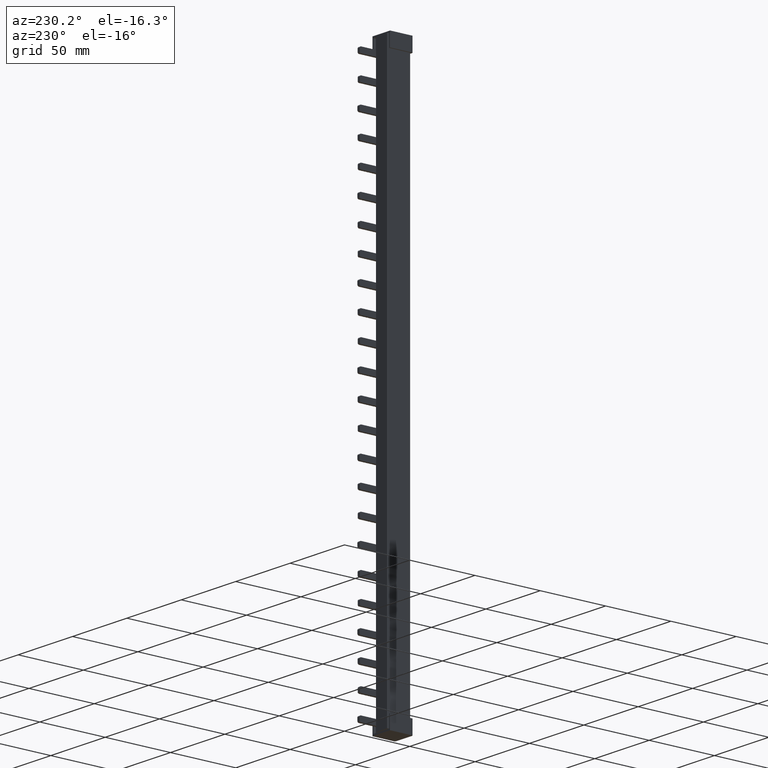
[diagram: clean part render]
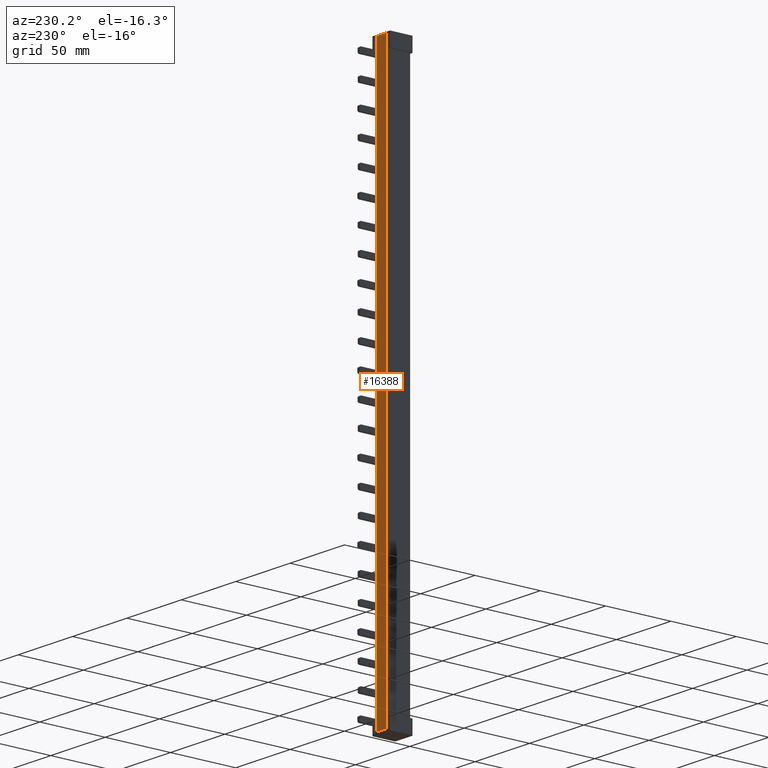
[diagram: same view with one face highlighted and labeled with its STEP entity id]
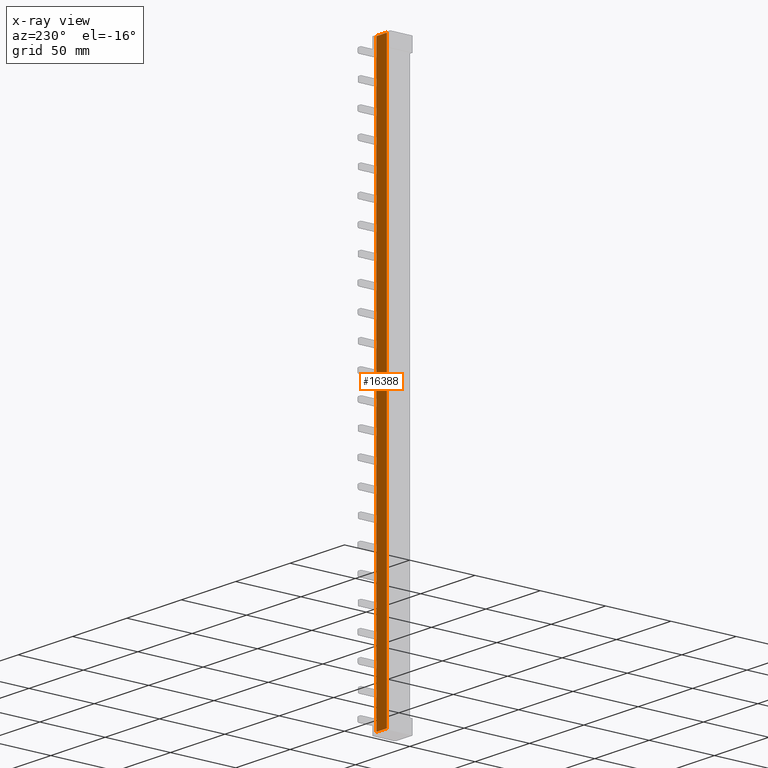
[diagram: x-ray of the same camera — body ghosted, the highlighted face saturated]
A machine part, auxiliary view. The second image highlights one B-rep face of the part: STEP entity #16388.
The next image is the same camera in x-ray: the body ghosted, the highlighted face saturated — about 0% of this face is hidden behind the body in this view.
In plain terms, the highlighted planar face has unit normal (0, 1, 0).
Its self-contained STEP definition (entity closure, byte-faithful):
#7617 = EDGE_CURVE ( 'NONE', #25913, #25951, #13799, .T. ) ;
#7629 = EDGE_CURVE ( 'NONE', #25842, #25833, #13850, .T. ) ;
#7650 = EDGE_CURVE ( 'NONE', #25913, #25842, #13873, .T. ) ;
#7659 = EDGE_CURVE ( 'NONE', #25833, #25951, #13921, .T. ) ;
#13788 = CARTESIAN_POINT ( 'NONE',  ( -0.1240000000000008700, 17.70000000000001400, 219.0000000000000000 ) ) ;
#13799 = LINE ( 'NONE', #13788, #40424 ) ;
#13831 = CARTESIAN_POINT ( 'NONE',  ( 9.543233284733545900, 17.69999999999998500, 219.0000000000000000 ) ) ;
#13834 = DIRECTION ( 'NONE',  ( -0.0000000000000000000, 0.0000000000000000000, -1.000000000000000000 ) ) ;
#13835 = DIRECTION ( 'NONE',  ( -0.0000000000000000000, -0.0000000000000000000, -1.000000000000000000 ) ) ;
#13850 = LINE ( 'NONE', #13831, #40504 ) ;
#13873 = LINE ( 'NONE', #13939, #40487 ) ;
#13921 = LINE ( 'NONE', #13927, #40469 ) ;
#13927 = CARTESIAN_POINT ( 'NONE',  ( 5.825548534933072500, 17.69999999999998500, -208.7999999999999800 ) ) ;
#13930 = DIRECTION ( 'NONE',  ( 1.000000000000000000, 0.0000000000000000000, -0.0000000000000000000 ) ) ;
#13933 = DIRECTION ( 'NONE',  ( -1.000000000000000000, -0.0000000000000000000, 0.0000000000000000000 ) ) ;
#13939 = CARTESIAN_POINT ( 'NONE',  ( 5.825548534933072500, 17.69999999999998500, 217.7999999999999800 ) ) ;
#16388 = ADVANCED_FACE ( 'NONE', ( #19972 ), #19967, .T. ) ;
#19967 = PLANE ( 'NONE',  #35660 ) ;
#19972 = FACE_OUTER_BOUND ( 'NONE', #26341, .T. ) ;
#19986 = DIRECTION ( 'NONE',  ( 0.0000000000000000000, -0.0000000000000000000, 1.000000000000000000 ) ) ;
#19988 = DIRECTION ( 'NONE',  ( 0.0000000000000000000, 1.000000000000000000, 0.0000000000000000000 ) ) ;
#19990 = CARTESIAN_POINT ( 'NONE',  ( 5.825548534933072500, 17.69999999999998500, 219.0000000000000000 ) ) ;
#23857 = ORIENTED_EDGE ( 'NONE', *, *, #7659, .T. ) ;
#23873 = ORIENTED_EDGE ( 'NONE', *, *, #7617, .F. ) ;
#23905 = ORIENTED_EDGE ( 'NONE', *, *, #7650, .T. ) ;
#23917 = ORIENTED_EDGE ( 'NONE', *, *, #7629, .T. ) ;
#25833 = VERTEX_POINT ( 'NONE', #27829 ) ;
#25842 = VERTEX_POINT ( 'NONE', #27878 ) ;
#25913 = VERTEX_POINT ( 'NONE', #28021 ) ;
#25951 = VERTEX_POINT ( 'NONE', #28130 ) ;
#26341 = EDGE_LOOP ( 'NONE', ( #23917, #23857, #23873, #23905 ) ) ;
#27829 = CARTESIAN_POINT ( 'NONE',  ( 9.543233284733545900, 17.69999999999998500, -208.7999999999999800 ) ) ;
#27878 = CARTESIAN_POINT ( 'NONE',  ( 9.543233284733545900, 17.69999999999998500, 217.7999999999999800 ) ) ;
#28021 = CARTESIAN_POINT ( 'NONE',  ( -0.1240000000000008500, 17.69999999999999900, 217.7999999999999800 ) ) ;
#28130 = CARTESIAN_POINT ( 'NONE',  ( -0.1240000000000008500, 17.69999999999999900, -208.7999999999999800 ) ) ;
#35660 = AXIS2_PLACEMENT_3D ( 'NONE', #19990, #19988, #19986 ) ;
#40424 = VECTOR ( 'NONE', #13835, 1000.000000000000000 ) ;
#40469 = VECTOR ( 'NONE', #13933, 1000.000000000000000 ) ;
#40487 = VECTOR ( 'NONE', #13930, 1000.000000000000000 ) ;
#40504 = VECTOR ( 'NONE', #13834, 1000.000000000000000 ) ;